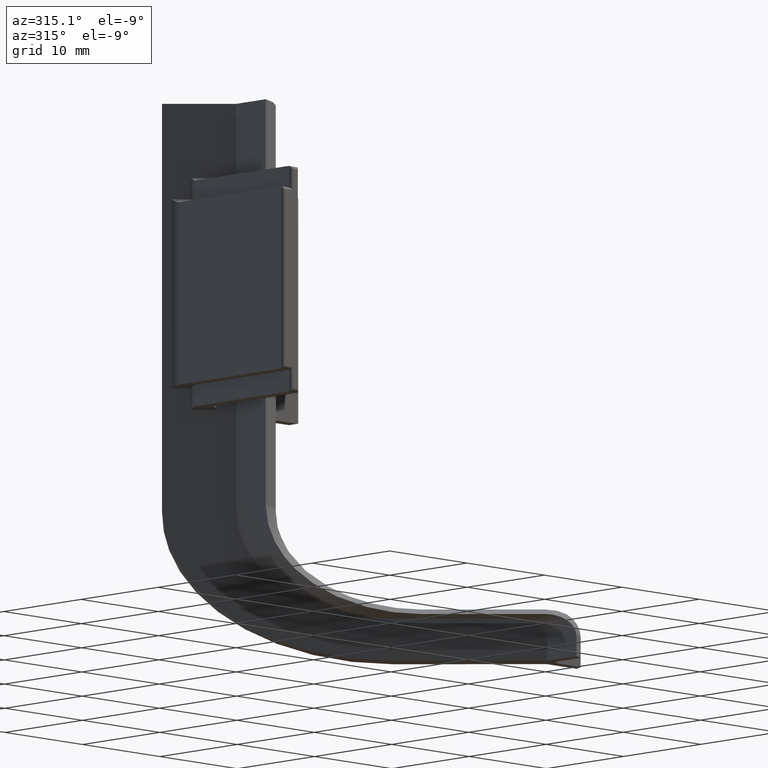
[diagram: clean part render]
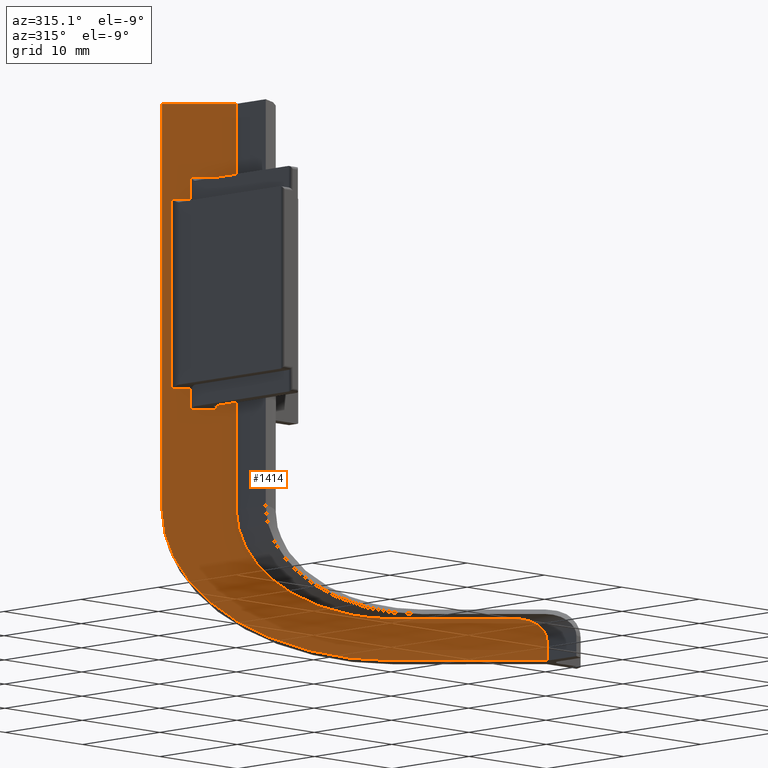
[diagram: same view with one face highlighted and labeled with its STEP entity id]
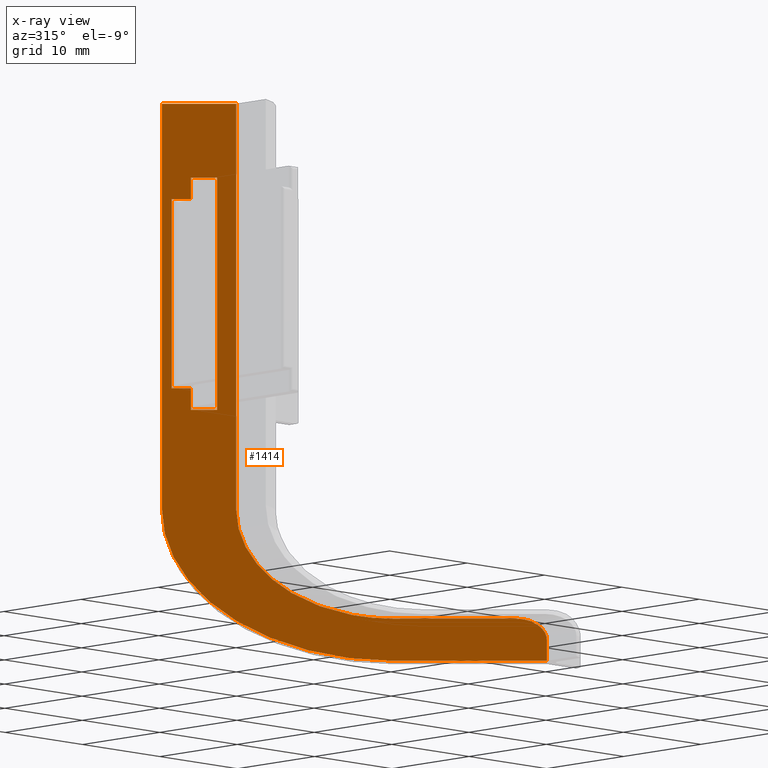
[diagram: x-ray of the same camera — body ghosted, the highlighted face saturated]
A machine part, auxiliary view. The second image highlights one B-rep face of the part: STEP entity #1414.
The next image is the same camera in x-ray: the body ghosted, the highlighted face saturated — about 0% of this face is hidden behind the body in this view.
In plain terms, the highlighted planar face has unit normal (-0.7071, -0.7071, -0).
Its self-contained STEP definition (entity closure, byte-faithful):
#16=FACE_BOUND('',#290,.T.);
#58=ELLIPSE('',#1566,21.0765112304904,14.);
#61=ELLIPSE('',#1576,2.82842712474619,2.);
#62=ELLIPSE('',#1579,14.2835569799683,10.1);
#206=FACE_OUTER_BOUND('',#289,.T.);
#289=EDGE_LOOP('',(#1271,#1272,#1273,#1274,#1275,#1276,#1277,#1278,#1279));
#290=EDGE_LOOP('',(#1280,#1281,#1282,#1283,#1284,#1285,#1286,#1287));
#320=LINE('',#1997,#440);
#329=LINE('',#2021,#449);
#339=LINE('',#2248,#459);
#371=LINE('',#2389,#491);
#373=LINE('',#2399,#493);
#376=LINE('',#2409,#496);
#378=LINE('',#2422,#498);
#380=LINE('',#2436,#500);
#382=LINE('',#2443,#502);
#384=LINE('',#2450,#504);
#420=LINE('',#2555,#540);
#435=LINE('',#2607,#555);
#438=LINE('',#2614,#558);
#439=LINE('',#2624,#559);
#440=VECTOR('',#1589,10.);
#449=VECTOR('',#1610,10.);
#459=VECTOR('',#1652,10.);
#491=VECTOR('',#1750,10.);
#493=VECTOR('',#1760,10.);
#496=VECTOR('',#1769,10.);
#498=VECTOR('',#1781,10.);
#500=VECTOR('',#1787,10.);
#502=VECTOR('',#1793,10.);
#504=VECTOR('',#1801,10.);
#540=VECTOR('',#1925,10.);
#555=VECTOR('',#1968,10.);
#558=VECTOR('',#1977,10.);
#559=VECTOR('',#1984,10.);
#560=VERTEX_POINT('',#1995);
#561=VERTEX_POINT('',#1996);
#570=VERTEX_POINT('',#2020);
#591=VERTEX_POINT('',#2245);
#592=VERTEX_POINT('',#2247);
#626=VERTEX_POINT('',#2378);
#628=VERTEX_POINT('',#2388);
#632=VERTEX_POINT('',#2398);
#636=VERTEX_POINT('',#2408);
#641=VERTEX_POINT('',#2419);
#642=VERTEX_POINT('',#2421);
#644=VERTEX_POINT('',#2434);
#647=VERTEX_POINT('',#2441);
#678=VERTEX_POINT('',#2574);
#684=VERTEX_POINT('',#2604);
#685=VERTEX_POINT('',#2606);
#686=VERTEX_POINT('',#2610);
#688=EDGE_CURVE('',#560,#561,#320,.T.);
#700=EDGE_CURVE('',#560,#570,#329,.T.);
#731=EDGE_CURVE('',#592,#591,#339,.T.);
#782=EDGE_CURVE('',#626,#628,#371,.T.);
#787=EDGE_CURVE('',#628,#632,#373,.T.);
#792=EDGE_CURVE('',#632,#636,#376,.T.);
#798=EDGE_CURVE('',#641,#642,#378,.T.);
#802=EDGE_CURVE('',#644,#641,#380,.T.);
#805=EDGE_CURVE('',#647,#644,#382,.T.);
#809=EDGE_CURVE('',#636,#647,#384,.T.);
#862=EDGE_CURVE('',#642,#626,#420,.T.);
#869=EDGE_CURVE('',#678,#592,#58,.T.);
#883=EDGE_CURVE('',#684,#685,#435,.T.);
#885=EDGE_CURVE('',#685,#686,#61,.T.);
#887=EDGE_CURVE('',#686,#591,#438,.T.);
#889=EDGE_CURVE('',#570,#684,#62,.T.);
#890=EDGE_CURVE('',#561,#678,#439,.T.);
#1271=ORIENTED_EDGE('',*,*,#688,.T.);
#1272=ORIENTED_EDGE('',*,*,#890,.T.);
#1273=ORIENTED_EDGE('',*,*,#869,.T.);
#1274=ORIENTED_EDGE('',*,*,#731,.T.);
#1275=ORIENTED_EDGE('',*,*,#887,.F.);
#1276=ORIENTED_EDGE('',*,*,#885,.F.);
#1277=ORIENTED_EDGE('',*,*,#883,.F.);
#1278=ORIENTED_EDGE('',*,*,#889,.F.);
#1279=ORIENTED_EDGE('',*,*,#700,.F.);
#1280=ORIENTED_EDGE('',*,*,#862,.F.);
#1281=ORIENTED_EDGE('',*,*,#798,.F.);
#1282=ORIENTED_EDGE('',*,*,#802,.F.);
#1283=ORIENTED_EDGE('',*,*,#805,.F.);
#1284=ORIENTED_EDGE('',*,*,#809,.F.);
#1285=ORIENTED_EDGE('',*,*,#792,.F.);
#1286=ORIENTED_EDGE('',*,*,#787,.F.);
#1287=ORIENTED_EDGE('',*,*,#782,.F.);
#1335=PLANE('',#1580);
#1414=ADVANCED_FACE('',(#206,#16),#1335,.T.);
#1566=AXIS2_PLACEMENT_3D('',#2575,#1940,#1941);
#1576=AXIS2_PLACEMENT_3D('',#2611,#1972,#1973);
#1579=AXIS2_PLACEMENT_3D('',#2622,#1980,#1981);
#1580=AXIS2_PLACEMENT_3D('',#2623,#1982,#1983);
#1589=DIRECTION('',(-0.707106781186548,0.707106781186547,1.51325502895748E-16));
#1610=DIRECTION('',(0.,0.,-1.));
#1652=DIRECTION('',(0.707106781186548,-0.707106781186547,4.88200623871986E-16));
#1750=DIRECTION('',(0.707106781186548,-0.707106781186547,-3.48909435263061E-16));
#1760=DIRECTION('',(6.16790569236197E-16,-5.61279418004939E-16,-1.));
#1769=DIRECTION('',(0.707106781186548,-0.707106781186547,-3.48909435263061E-16));
#1781=DIRECTION('',(-0.707106781186548,0.707106781186547,3.48909435263061E-16));
#1787=DIRECTION('',(-4.93432455388958E-16,5.48943606620216E-16,-1.));
#1793=DIRECTION('',(-0.707106781186548,0.707106781186547,3.48909435263061E-16));
#1801=DIRECTION('',(-1.44016171190079E-16,8.85050199588207E-17,1.));
#1925=DIRECTION('',(1.63504245572673E-16,-1.07993094341415E-16,-1.));
#1940=DIRECTION('center_axis',(-0.707106781186547,-0.707106781186548,-3.92523114670944E-17));
#1941=DIRECTION('ref_axis',(-0.707106781186548,0.707106781186547,8.14761197141359E-17));
#1968=DIRECTION('',(0.707106781186548,-0.707106781186547,4.36136794078828E-16));
#1972=DIRECTION('center_axis',(0.707106781186547,0.707106781186548,3.92523114670944E-17));
#1973=DIRECTION('ref_axis',(0.707106781186547,-0.707106781186547,-3.48909435263061E-16));
#1977=DIRECTION('',(-4.93432455388958E-16,5.48943606620216E-16,-1.));
#1980=DIRECTION('center_axis',(-0.707106781186547,-0.707106781186548,-3.92523114670944E-17));
#1981=DIRECTION('ref_axis',(0.707106781186548,-0.707106781186547,-3.48909435263061E-16));
#1982=DIRECTION('center_axis',(-0.707106781186547,-0.707106781186548,-3.92523114670944E-17));
#1983=DIRECTION('ref_axis',(-5.55111512312579E-17,0.,1.));
#1984=DIRECTION('',(0.,0.,-1.));
#1995=CARTESIAN_POINT('',(-0.0999999999999912,49.9183766184074,17.6));
#1996=CARTESIAN_POINT('',(-4.90334401483417,54.7217206332415,17.6));
#1997=CARTESIAN_POINT('',(15.4873182034655,34.3310584149419,17.6));
#2020=CARTESIAN_POINT('',(-0.0999999999999912,49.9183766184074,-20.));
#2021=CARTESIAN_POINT('',(-0.0999999999999912,49.9183766184074,20.));
#2245=CARTESIAN_POINT('',(20.,29.8183766184073,-34.));
#2247=CARTESIAN_POINT('',(10.,39.8183766184073,-34.));
#2248=CARTESIAN_POINT('',(21.2298774093548,28.5884992090526,-34.));
#2378=CARTESIAN_POINT('',(-4.29289321881346,54.1112698372208,-8.74999999999998));
#2388=CARTESIAN_POINT('',(-3.03786796564404,52.8562445840514,-8.74999999999998));
#2389=CARTESIAN_POINT('',(33.9091883092037,15.9091883092037,-8.75));
#2398=CARTESIAN_POINT('',(-3.03786796564403,52.8562445840514,-10.75));
#2399=CARTESIAN_POINT('',(-3.03786796564405,52.8562445840514,15.571477125261));
#2408=CARTESIAN_POINT('',(-1.33786796564403,51.1562445840514,-10.75));
#2409=CARTESIAN_POINT('',(34.1716883092037,15.6466883092037,-10.75));
#2419=CARTESIAN_POINT('',(-3.03786796564403,52.8562445840514,8.75000000000002));
#2421=CARTESIAN_POINT('',(-4.29289321881345,54.1112698372208,8.75000000000002));
#2422=CARTESIAN_POINT('',(34.1716883092037,15.6466883092037,8.75));
#2434=CARTESIAN_POINT('',(-3.03786796564403,52.8562445840514,10.75));
#2436=CARTESIAN_POINT('',(-3.03786796564402,52.8562445840514,25.0214771252611));
#2441=CARTESIAN_POINT('',(-1.33786796564404,51.1562445840514,10.75));
#2443=CARTESIAN_POINT('',(34.4466883092037,15.3716883092037,10.75));
#2450=CARTESIAN_POINT('',(-1.33786796564404,51.1562445840514,14.5714771252611));
#2555=CARTESIAN_POINT('',(-4.29289321881346,54.1112698372208,24.0214771252611));
#2574=CARTESIAN_POINT('',(-4.90334401483417,54.7217206332415,-20.));
#2575=CARTESIAN_POINT('Origin',(10.,39.8183766184073,-20.));
#2604=CARTESIAN_POINT('',(10.,39.8183766184073,-30.1));
#2606=CARTESIAN_POINT('',(18.,31.8183766184073,-30.1));
#2607=CARTESIAN_POINT('',(31.9545941546019,17.8637824638055,-30.1));
#2610=CARTESIAN_POINT('',(20.,29.8183766184073,-32.1));
#2611=CARTESIAN_POINT('Origin',(18.,31.8183766184073,-32.1));
#2614=CARTESIAN_POINT('',(20.,29.8183766184073,-17.));
#2622=CARTESIAN_POINT('Origin',(10.,39.8183766184074,-20.));
#2623=CARTESIAN_POINT('Origin',(19.9091883092037,29.9091883092037,39.5929542505221));
#2624=CARTESIAN_POINT('',(-4.90334401483417,54.7217206332415,20.));